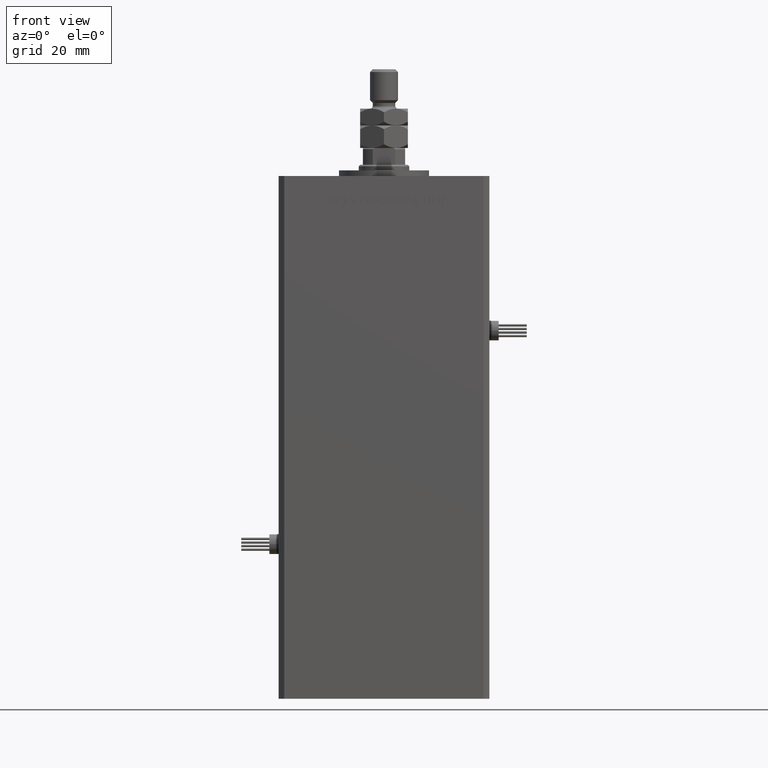
[diagram: clean part render]
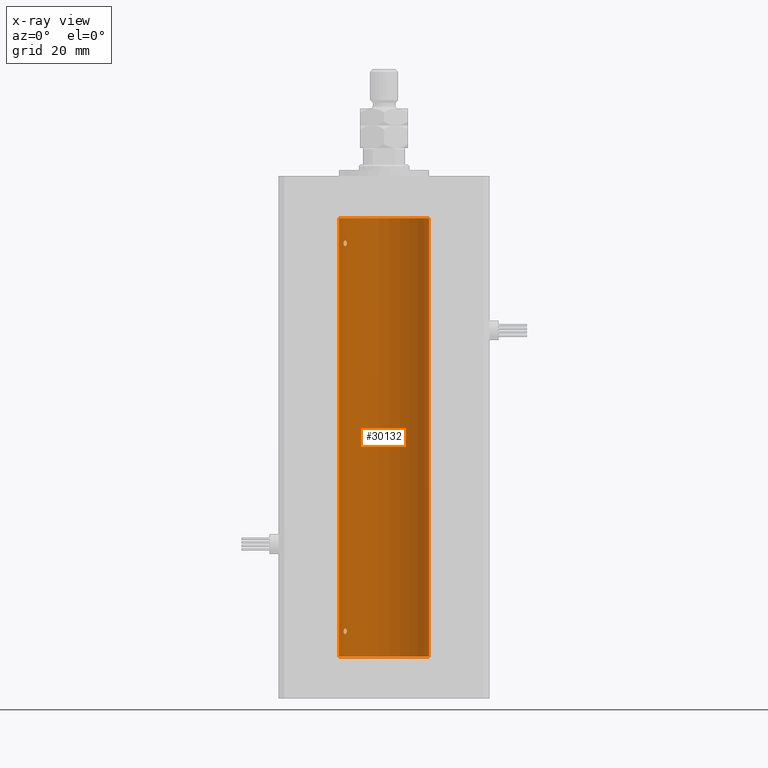
[diagram: x-ray — body ghosted, one internal face saturated and labeled with its STEP entity id]
A machine part, front view, then the same camera in x-ray: the body is ghosted and one INTERNAL B-rep face — a face not visible from any outside direction — is saturated and labeled: STEP entity #30132.
In plain terms, the highlighted cylindrical surface (partial cylindrical patch) has radius 16 mm, axis along (-0, -0, -1).
Its self-contained STEP definition (entity closure, byte-faithful):
#1154 = EDGE_LOOP ( 'NONE', ( #40244, #29925, #8060, #51056 ) ) ;
#1607 = EDGE_CURVE ( 'NONE', #35503, #27085, #28368, .T. ) ;
#1907 = CARTESIAN_POINT ( 'NONE',  ( -13.70481462797717320, 8.258098555717507949, 146.0259974772911278 ) ) ;
#2193 = CARTESIAN_POINT ( 'NONE',  ( -14.37250282441143945, 7.031013007322937547, 146.7168569960372793 ) ) ;
#2576 = CARTESIAN_POINT ( 'NONE',  ( -14.17528142432533755, 7.421143801852455368, 8.173943073538659121 ) ) ;
#2943 = CARTESIAN_POINT ( 'NONE',  ( -13.32457971225032267, 8.857769707964649797, 147.5319996627465571 ) ) ;
#3036 = CARTESIAN_POINT ( 'NONE',  ( -13.70792461986390620, 8.256614593260307444, 9.996621535642271184 ) ) ;
#3231 = CARTESIAN_POINT ( 'NONE',  ( -13.55800260393082901, 8.498809056167511145, 147.9036434462101397 ) ) ;
#3241 = EDGE_LOOP ( 'NONE', ( #13461, #41865 ) ) ;
#3355 = AXIS2_PLACEMENT_3D ( 'NONE', #19057, #50319, #40299 ) ;
#4278 = AXIS2_PLACEMENT_3D ( 'NONE', #38937, #12537, #29768 ) ;
#4487 = DIRECTION ( 'NONE',  ( -0.000000000000000000, -0.000000000000000000, -1.000000000000000000 ) ) ;
#6878 = CARTESIAN_POINT ( 'NONE',  ( -14.38749456993815912, 6.999999999999997335, 9.000000000000000000 ) ) ;
#7057 = CARTESIAN_POINT ( 'NONE',  ( -13.98699950016872506, 7.770591669637118670, 146.0184768166485298 ) ) ;
#7920 = B_SPLINE_CURVE_WITH_KNOTS ( 'NONE', 3,
 ( #24852, #55253, #42356, #34325, #25708, #43215, #3036, #21411, #54964, #20551, #15659, #55539, #33762, #11940, #29448, #16520 ),
 .UNSPECIFIED., .F., .F.,
 ( 4, 2, 2, 2, 2, 2, 2, 4 ),
 ( 0.003377672193071777282, 0.003799209865779874882, 0.004220747538487972482, 0.005063822883904168549, 0.005485360556612268318, 0.005906898229320367219, 0.006328435902028466120, 0.006749973574736565889 ),
 .UNSPECIFIED. ) ;
#8060 = ORIENTED_EDGE ( 'NONE', *, *, #16472, .T. ) ;
#8081 = FACE_OUTER_BOUND ( 'NONE', #1154, .T. ) ;
#10347 = B_SPLINE_CURVE_WITH_KNOTS ( 'NONE', 3,
 ( #6878, #24389, #16350, #41888, #11477, #2576, #20085, #37592, #33583, #55083, #15779, #24675, #37885, #42760, #51070, #11762, #33868, #12056, #17202, #30412 ),
 .UNSPECIFIED., .F., .F.,
 ( 4, 2, 2, 2, 2, 2, 2, 2, 2, 4 ),
 ( 0.000000000000000000, 0.0004222090241339719976, 0.0008444180482679439952, 0.001266627072401915830, 0.001688836096535887990, 0.002111045120669860151, 0.002533254144803831660, 0.002955463168937803604, 0.003166567681004790660, 0.003377672193071777282 ),
 .UNSPECIFIED. ) ;
#10979 = VERTEX_POINT ( 'NONE', #31136 ) ;
#10981 = CARTESIAN_POINT ( 'NONE',  ( -14.38749456993815912, 6.999999999999998224, 147.0000000000000000 ) ) ;
#11082 = CARTESIAN_POINT ( 'NONE',  ( -13.22875655532295802, 8.999999999999996447, 147.0000000000000000 ) ) ;
#11372 = CARTESIAN_POINT ( 'NONE',  ( -13.37674940693422698, 8.779234808442867077, 146.3602441571268287 ) ) ;
#11477 = CARTESIAN_POINT ( 'NONE',  ( -14.27547848986622014, 7.226527013162185931, 8.352555730181528304 ) ) ;
#11762 = CARTESIAN_POINT ( 'NONE',  ( -13.26838749541400198, 8.941532915076040311, 8.656217793921369363 ) ) ;
#11940 = CARTESIAN_POINT ( 'NONE',  ( -14.37227256866306213, 7.031482256185707769, 9.284457240976479397 ) ) ;
#12056 = CARTESIAN_POINT ( 'NONE',  ( -13.23400746336172951, 8.992294519018086518, 8.857814559023015732 ) ) ;
#12537 = DIRECTION ( 'NONE',  ( -0.000000000000000000, 0.000000000000000000, 1.000000000000000000 ) ) ;
#12544 = CIRCLE ( 'NONE', #4278, 16.00000000000000000 ) ;
#12579 = VECTOR ( 'NONE', #13057, 1000.000000000000000 ) ;
#12771 = CARTESIAN_POINT ( 'NONE',  ( 16.00000000000000000, 1.959434878635765131E-15, 156.0000000000000000 ) ) ;
#13057 = DIRECTION ( 'NONE',  ( -0.000000000000000000, -0.000000000000000000, -1.000000000000000000 ) ) ;
#13461 = ORIENTED_EDGE ( 'NONE', *, *, #55337, .F. ) ;
#14895 = ORIENTED_EDGE ( 'NONE', *, *, #1607, .F. ) ;
#15112 = CARTESIAN_POINT ( 'NONE',  ( -13.26838749541400730, 8.941532915076043864, 146.6562177939213427 ) ) ;
#15385 = CARTESIAN_POINT ( 'NONE',  ( -13.25390108270225298, 8.962947079338393408, 146.7214357623584817 ) ) ;
#15659 = CARTESIAN_POINT ( 'NONE',  ( -14.17576283486774535, 7.420212263225985261, 9.825253034304354927 ) ) ;
#15779 = CARTESIAN_POINT ( 'NONE',  ( -13.70481462797718031, 8.258098555717506173, 8.025997477291133109 ) ) ;
#16350 = CARTESIAN_POINT ( 'NONE',  ( -14.37250282441143767, 7.031013007322936659, 8.716856996037261496 ) ) ;
#16472 = EDGE_CURVE ( 'NONE', #52688, #10979, #30616, .T. ) ;
#16520 = CARTESIAN_POINT ( 'NONE',  ( -14.38749456993815912, 6.999999999999997335, 9.000000000000000000 ) ) ;
#17081 = CIRCLE ( 'NONE', #3355, 16.00000000000000000 ) ;
#17202 = CARTESIAN_POINT ( 'NONE',  ( -13.22875655532295092, 8.999999999999994671, 8.929565622361636201 ) ) ;
#19057 = CARTESIAN_POINT ( 'NONE',  ( 0.000000000000000000, 0.000000000000000000, 0.000000000000000000 ) ) ;
#19316 = CARTESIAN_POINT ( 'NONE',  ( 16.00000000000000000, 1.959434878635765131E-15, 156.0000000000000000 ) ) ;
#19422 = CARTESIAN_POINT ( 'NONE',  ( -13.56386909142669772, 8.487613976483638467, 146.1182242979960790 ) ) ;
#19600 = CARTESIAN_POINT ( 'NONE',  ( -13.22875655532295802, 8.999999999999996447, 147.0000000000000000 ) ) ;
#19858 = CARTESIAN_POINT ( 'NONE',  ( -13.22875655532295802, 8.999999999999996447, 147.0000000000000000 ) ) ;
#19912 = FACE_BOUND ( 'NONE', #34306, .T. ) ;
#20085 = CARTESIAN_POINT ( 'NONE',  ( -14.11621438951177332, 7.533308783217010252, 8.106571071839512754 ) ) ;
#20457 = CARTESIAN_POINT ( 'NONE',  ( -13.91892506969882426, 7.891973478508846895, 148.0015521226324324 ) ) ;
#20551 = CARTESIAN_POINT ( 'NONE',  ( -14.11618354197461400, 7.533333301880478672, 9.893207651933416003 ) ) ;
#20556 = CARTESIAN_POINT ( 'NONE',  ( -14.38749456993815556, 6.999999999999997335, 146.8571474096353882 ) ) ;
#20745 = CARTESIAN_POINT ( 'NONE',  ( -14.31650799088418324, 7.144337649771909327, 147.5355226273736662 ) ) ;
#21141 = CARTESIAN_POINT ( 'NONE',  ( -13.22875655532295447, 8.999999999999996447, 9.000000000000000000 ) ) ;
#21411 = CARTESIAN_POINT ( 'NONE',  ( -13.91892506969882959, 7.891973478508852224, 10.00155212263243953 ) ) ;
#23730 = CARTESIAN_POINT ( 'NONE',  ( -13.77582987033441064, 8.139210687602716376, 146.0021105458418447 ) ) ;
#24389 = CARTESIAN_POINT ( 'NONE',  ( -14.38749456993815556, 6.999999999999997335, 8.857147409635411250 ) ) ;
#24675 = CARTESIAN_POINT ( 'NONE',  ( -13.56386909142669950, 8.487613976483636691, 8.118224297996075478 ) ) ;
#24852 = CARTESIAN_POINT ( 'NONE',  ( -13.22875655532295447, 8.999999999999996447, 9.000000000000000000 ) ) ;
#25045 = CARTESIAN_POINT ( 'NONE',  ( -14.27521483392929369, 7.227035590538639198, 147.6478598706881940 ) ) ;
#25708 = CARTESIAN_POINT ( 'NONE',  ( -13.37741691572085934, 8.778212469423014142, 9.640882860227099727 ) ) ;
#27085 = VERTEX_POINT ( 'NONE', #19858 ) ;
#27469 = ORIENTED_EDGE ( 'NONE', *, *, #32590, .F. ) ;
#28368 = B_SPLINE_CURVE_WITH_KNOTS ( 'NONE', 3,
 ( #41508, #20556, #2193, #46659, #33192, #37209, #50676, #7057, #38057, #23730, #1907, #19422, #54694, #11372, #36934, #15112, #15385, #32907, #50390, #11082 ),
 .UNSPECIFIED., .F., .F.,
 ( 4, 2, 2, 2, 2, 2, 2, 2, 2, 4 ),
 ( 0.000000000000000000, 0.0004222090241339814844, 0.0008444180482679629687, 0.001266627072401944453, 0.001688836096535925937, 0.002111045120669907422, 0.002533254144803888906, 0.002955463168937870391, 0.003166567681004825354, 0.003377672193071779884 ),
 .UNSPECIFIED. ) ;
#28534 = FACE_BOUND ( 'NONE', #3241, .T. ) ;
#29063 = CARTESIAN_POINT ( 'NONE',  ( -13.22875655532296157, 8.999999999999998224, 147.1406447609177519 ) ) ;
#29448 = CARTESIAN_POINT ( 'NONE',  ( -14.38749456993816445, 6.999999999999997335, 9.142625441524202756 ) ) ;
#29768 = DIRECTION ( 'NONE',  ( 1.000000000000000000, 0.000000000000000000, 0.000000000000000000 ) ) ;
#29925 = ORIENTED_EDGE ( 'NONE', *, *, #35053, .T. ) ;
#30132 = ADVANCED_FACE ( 'NONE', ( #8081, #28534, #19912 ), #55701, .F. ) ;
#30412 = CARTESIAN_POINT ( 'NONE',  ( -13.22875655532295447, 8.999999999999996447, 9.000000000000000000 ) ) ;
#30560 = VERTEX_POINT ( 'NONE', #53862 ) ;
#30616 = LINE ( 'NONE', #48123, #44015 ) ;
#31136 = CARTESIAN_POINT ( 'NONE',  ( -16.00000000000000000, 0.000000000000000000, 0.000000000000000000 ) ) ;
#32590 = EDGE_CURVE ( 'NONE', #27085, #35503, #48254, .T. ) ;
#32907 = CARTESIAN_POINT ( 'NONE',  ( -13.23400746336172418, 8.992294519018086518, 146.8578145590230122 ) ) ;
#33192 = CARTESIAN_POINT ( 'NONE',  ( -14.27547848986623080, 7.226527013162187707, 146.3525557301815354 ) ) ;
#33583 = CARTESIAN_POINT ( 'NONE',  ( -13.91838063522420832, 7.892966471903941184, 7.998148313308679036 ) ) ;
#33668 = CARTESIAN_POINT ( 'NONE',  ( -13.37741691572086289, 8.778212469423007036, 147.6408828602271228 ) ) ;
#33762 = CARTESIAN_POINT ( 'NONE',  ( -14.31650799088418324, 7.144337649771912879, 9.535522627373689275 ) ) ;
#33868 = CARTESIAN_POINT ( 'NONE',  ( -13.25390108270225298, 8.962947079338388079, 8.721435762358455079 ) ) ;
#34306 = EDGE_LOOP ( 'NONE', ( #14895, #27469 ) ) ;
#34325 = CARTESIAN_POINT ( 'NONE',  ( -13.32457971225032445, 8.857769707964649797, 9.531999662746555302 ) ) ;
#35053 = EDGE_CURVE ( 'NONE', #51420, #52688, #12544, .T. ) ;
#35503 = VERTEX_POINT ( 'NONE', #56013 ) ;
#36934 = CARTESIAN_POINT ( 'NONE',  ( -13.32426099938365383, 8.858246960865843178, 146.4688748775329827 ) ) ;
#37079 = AXIS2_PLACEMENT_3D ( 'NONE', #51693, #39057, #43092 ) ;
#37209 = CARTESIAN_POINT ( 'NONE',  ( -14.17528142432533755, 7.421143801852456257, 146.1739430735386804 ) ) ;
#37592 = CARTESIAN_POINT ( 'NONE',  ( -13.98699950016872151, 7.770591669637119558, 8.018476816648481886 ) ) ;
#37885 = CARTESIAN_POINT ( 'NONE',  ( -13.49759407097374897, 8.592283911330223845, 8.184099152127670251 ) ) ;
#37966 = CARTESIAN_POINT ( 'NONE',  ( -13.98878315975728981, 7.767347947480344850, 147.9805461432612503 ) ) ;
#38057 = CARTESIAN_POINT ( 'NONE',  ( -13.91838063522421187, 7.892966471903947401, 145.9981483133087181 ) ) ;
#38937 = CARTESIAN_POINT ( 'NONE',  ( 0.000000000000000000, 0.000000000000000000, 156.0000000000000000 ) ) ;
#39057 = DIRECTION ( 'NONE',  ( -0.000000000000000000, -0.000000000000000000, -1.000000000000000000 ) ) ;
#39641 = CARTESIAN_POINT ( 'NONE',  ( -16.00000000000000000, 0.000000000000000000, 156.0000000000000000 ) ) ;
#39795 = VERTEX_POINT ( 'NONE', #56519 ) ;
#40244 = ORIENTED_EDGE ( 'NONE', *, *, #42429, .F. ) ;
#40299 = DIRECTION ( 'NONE',  ( 1.000000000000000000, 0.000000000000000000, 0.000000000000000000 ) ) ;
#41061 = EDGE_CURVE ( 'NONE', #46688, #39795, #7920, .T. ) ;
#41227 = EDGE_CURVE ( 'NONE', #30560, #10979, #17081, .T. ) ;
#41405 = CARTESIAN_POINT ( 'NONE',  ( -14.17576283486774713, 7.420212263225987925, 147.8252530343043247 ) ) ;
#41508 = CARTESIAN_POINT ( 'NONE',  ( -14.38749456993815912, 6.999999999999998224, 147.0000000000000000 ) ) ;
#41686 = CARTESIAN_POINT ( 'NONE',  ( -14.37227256866306213, 7.031482256185710433, 147.2844572409764794 ) ) ;
#41865 = ORIENTED_EDGE ( 'NONE', *, *, #41061, .F. ) ;
#41888 = CARTESIAN_POINT ( 'NONE',  ( -14.31660136508399184, 7.144151923086058176, 8.464621795444474017 ) ) ;
#42356 = CARTESIAN_POINT ( 'NONE',  ( -13.24976519864029179, 8.969293778684576779, 9.281535226335156707 ) ) ;
#42429 = EDGE_CURVE ( 'NONE', #51420, #30560, #43762, .T. ) ;
#42760 = CARTESIAN_POINT ( 'NONE',  ( -13.37674940693422521, 8.779234808442870630, 8.360244157126784259 ) ) ;
#43092 = DIRECTION ( 'NONE',  ( -1.000000000000000000, 0.000000000000000000, 0.000000000000000000 ) ) ;
#43215 = CARTESIAN_POINT ( 'NONE',  ( -13.55800260393082546, 8.498809056167521803, 9.903643446210175227 ) ) ;
#43762 = LINE ( 'NONE', #12771, #12579 ) ;
#44015 = VECTOR ( 'NONE', #4487, 1000.000000000000000 ) ;
#46560 = CARTESIAN_POINT ( 'NONE',  ( -13.24976519864029179, 8.969293778684573226, 147.2815352263351656 ) ) ;
#46659 = CARTESIAN_POINT ( 'NONE',  ( -14.31660136508398828, 7.144151923086062617, 146.4646217954444296 ) ) ;
#46688 = VERTEX_POINT ( 'NONE', #21141 ) ;
#48123 = CARTESIAN_POINT ( 'NONE',  ( -16.00000000000000000, 0.000000000000000000, 156.0000000000000000 ) ) ;
#48254 = B_SPLINE_CURVE_WITH_KNOTS ( 'NONE', 3,
 ( #19600, #29063, #46560, #2943, #33668, #3231, #55737, #20457, #37966, #55450, #41405, #25045, #20745, #41686, #50289, #10981 ),
 .UNSPECIFIED., .F., .F.,
 ( 4, 2, 2, 2, 2, 2, 2, 4 ),
 ( 0.003377672193071779884, 0.003799209865779893530, 0.004220747538488007176, 0.005063822883904185029, 0.005485360556612275257, 0.005906898229320365484, 0.006328435902028455712, 0.006749973574736545072 ),
 .UNSPECIFIED. ) ;
#50289 = CARTESIAN_POINT ( 'NONE',  ( -14.38749456993816089, 6.999999999999999112, 147.1426254415242454 ) ) ;
#50319 = DIRECTION ( 'NONE',  ( -0.000000000000000000, 0.000000000000000000, 1.000000000000000000 ) ) ;
#50390 = CARTESIAN_POINT ( 'NONE',  ( -13.22875655532295802, 8.999999999999998224, 146.9295656223616504 ) ) ;
#50676 = CARTESIAN_POINT ( 'NONE',  ( -14.11621438951178398, 7.533308783217012028, 146.1065710718395110 ) ) ;
#51056 = ORIENTED_EDGE ( 'NONE', *, *, #41227, .F. ) ;
#51070 = CARTESIAN_POINT ( 'NONE',  ( -13.32426099938365027, 8.858246960865852060, 8.468874877532968526 ) ) ;
#51420 = VERTEX_POINT ( 'NONE', #19316 ) ;
#51693 = CARTESIAN_POINT ( 'NONE',  ( 0.000000000000000000, 0.000000000000000000, 156.0000000000000000 ) ) ;
#52688 = VERTEX_POINT ( 'NONE', #39641 ) ;
#53862 = CARTESIAN_POINT ( 'NONE',  ( 16.00000000000000000, 1.959434878635765131E-15, 0.000000000000000000 ) ) ;
#54694 = CARTESIAN_POINT ( 'NONE',  ( -13.49759407097375075, 8.592283911330225621, 146.1840991521276862 ) ) ;
#54964 = CARTESIAN_POINT ( 'NONE',  ( -13.98878315975729159, 7.767347947480346626, 9.980546143261280534 ) ) ;
#55083 = CARTESIAN_POINT ( 'NONE',  ( -13.77582987033441064, 8.139210687602712824, 8.002110545841816247 ) ) ;
#55253 = CARTESIAN_POINT ( 'NONE',  ( -13.22875655532295447, 8.999999999999996447, 9.140644760917734146 ) ) ;
#55337 = EDGE_CURVE ( 'NONE', #39795, #46688, #10347, .T. ) ;
#55450 = CARTESIAN_POINT ( 'NONE',  ( -14.11618354197461400, 7.533333301880476895, 147.8932076519334089 ) ) ;
#55539 = CARTESIAN_POINT ( 'NONE',  ( -14.27521483392929014, 7.227035590538633869, 9.647859870688195727 ) ) ;
#55701 = CYLINDRICAL_SURFACE ( 'NONE', #37079, 16.00000000000000000 ) ;
#55737 = CARTESIAN_POINT ( 'NONE',  ( -13.70792461986390798, 8.256614593260307444, 147.9966215356422765 ) ) ;
#56013 = CARTESIAN_POINT ( 'NONE',  ( -14.38749456993815912, 6.999999999999998224, 147.0000000000000000 ) ) ;
#56519 = CARTESIAN_POINT ( 'NONE',  ( -14.38749456993815912, 6.999999999999997335, 9.000000000000000000 ) ) ;